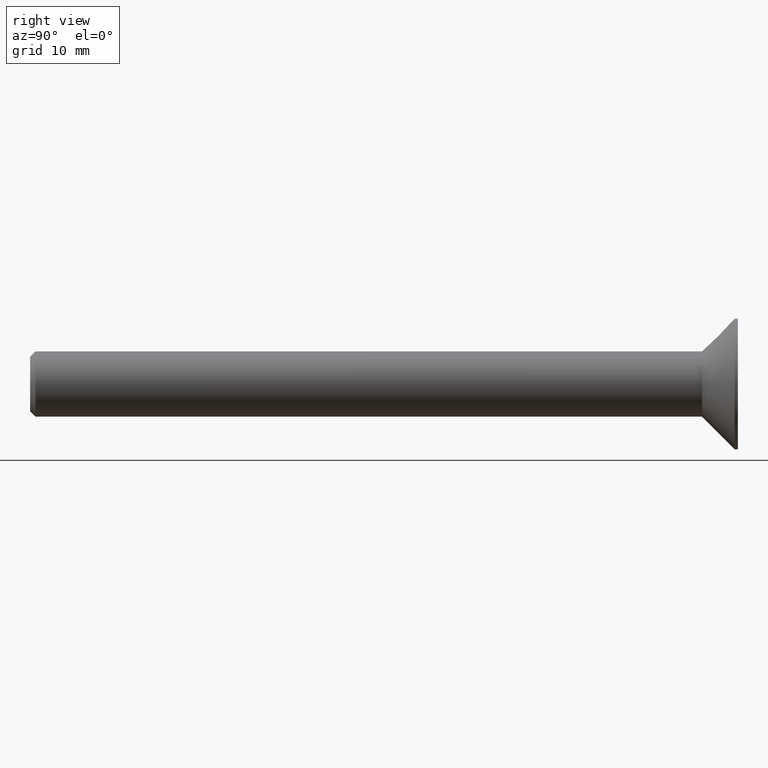
[diagram: clean part render]
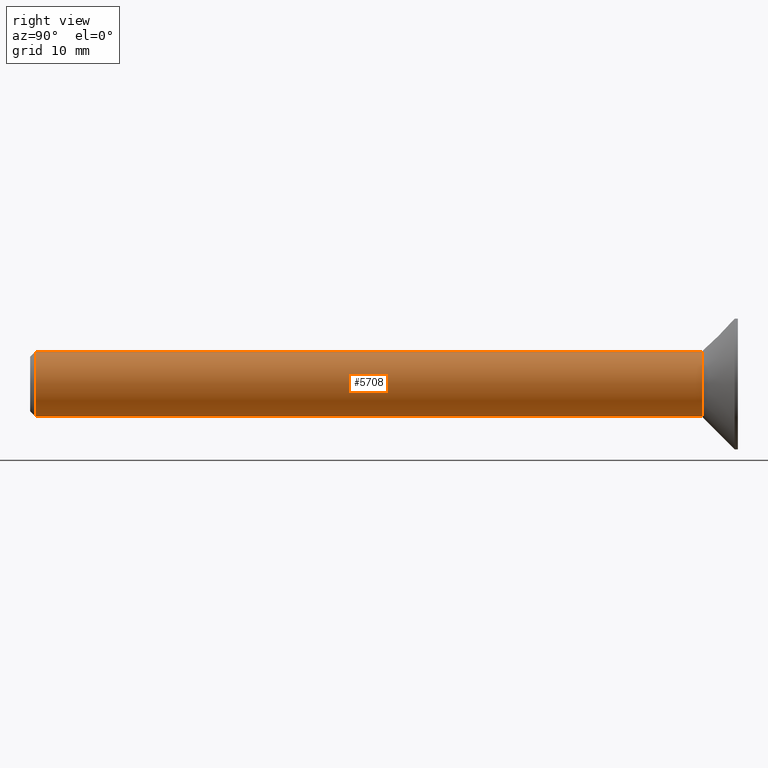
[diagram: same view with one face highlighted and labeled with its STEP entity id]
A machine part, right view. The second image highlights one B-rep face of the part: STEP entity #5708.
In plain terms, the highlighted cylindrical surface (bore or boss wall) has radius 3 mm, axis along (-0, -1, -0).
Its self-contained STEP definition (entity closure, byte-faithful):
#115 = AXIS2_PLACEMENT_3D ( 'NONE', #5581, #12535, #6766 ) ;
#119 = CARTESIAN_POINT ( 'NONE',  ( 0.000000000000000000, -32.50000000000000000, 0.000000000000000000 ) ) ;
#303 = CARTESIAN_POINT ( 'NONE',  ( 0.000000000000000000, -32.00000000000000000, -3.000000000000003553 ) ) ;
#1069 = EDGE_CURVE ( 'NONE', #15254, #15254, #2767, .T. ) ;
#1423 = CARTESIAN_POINT ( 'NONE',  ( 0.000000000000000000, 29.20000000000000284, -2.999999999999999556 ) ) ;
#1573 = CYLINDRICAL_SURFACE ( 'NONE', #11365, 3.000000000000003553 ) ;
#1826 = CIRCLE ( 'NONE', #12173, 3.000000000000003553 ) ;
#2767 = CIRCLE ( 'NONE', #115, 2.999999999999999556 ) ;
#4733 = FACE_OUTER_BOUND ( 'NONE', #6189, .T. ) ;
#4756 = DIRECTION ( 'NONE',  ( 0.000000000000000000, 1.000000000000000000, 0.000000000000000000 ) ) ;
#5355 = ORIENTED_EDGE ( 'NONE', *, *, #1069, .T. ) ;
#5581 = CARTESIAN_POINT ( 'NONE',  ( 0.000000000000000000, 29.20000000000000284, 0.000000000000000000 ) ) ;
#5708 = ADVANCED_FACE ( 'NONE', ( #7879, #4733 ), #1573, .T. ) ;
#6180 = DIRECTION ( 'NONE',  ( 0.000000000000000000, 0.000000000000000000, -1.000000000000000000 ) ) ;
#6189 = EDGE_LOOP ( 'NONE', ( #5355 ) ) ;
#6766 = DIRECTION ( 'NONE',  ( 0.000000000000000000, 0.000000000000000000, -1.000000000000000000 ) ) ;
#7413 = EDGE_CURVE ( 'NONE', #12277, #12277, #1826, .T. ) ;
#7879 = FACE_OUTER_BOUND ( 'NONE', #14370, .T. ) ;
#10376 = ORIENTED_EDGE ( 'NONE', *, *, #7413, .T. ) ;
#10762 = DIRECTION ( 'NONE',  ( 0.000000000000000000, 0.000000000000000000, -1.000000000000000000 ) ) ;
#10791 = DIRECTION ( 'NONE',  ( -0.000000000000000000, -1.000000000000000000, -0.000000000000000000 ) ) ;
#11365 = AXIS2_PLACEMENT_3D ( 'NONE', #119, #10791, #6180 ) ;
#12173 = AXIS2_PLACEMENT_3D ( 'NONE', #14205, #4756, #10762 ) ;
#12277 = VERTEX_POINT ( 'NONE', #303 ) ;
#12535 = DIRECTION ( 'NONE',  ( -0.000000000000000000, -1.000000000000000000, -0.000000000000000000 ) ) ;
#14205 = CARTESIAN_POINT ( 'NONE',  ( 0.000000000000000000, -32.00000000000000000, 0.000000000000000000 ) ) ;
#14370 = EDGE_LOOP ( 'NONE', ( #10376 ) ) ;
#15254 = VERTEX_POINT ( 'NONE', #1423 ) ;